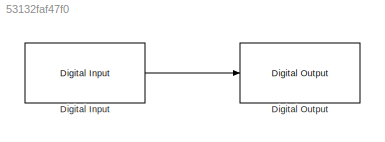
MODEL slx_53132faf47f0
KIND model
CONFIG AbsTol = auto
CONFIG EnableMultiTasking = on
CONFIG FixedStep = auto
CONFIG MaxStep = auto
CONFIG MinStep = auto
CONFIG RelTol = 1e-3
CONFIG SampleTimeConstraint = Unconstrained
CONFIG Solver = FixedStepAuto
CONFIG SolverName = FixedStepAuto
CONFIG StartTime = 0.0
CONFIG StopTime = inf
BLOCK [Reference] Digital Input  REF=arduinolib/Digital Input
  Ports = [0, 1]
  SourceBlock = arduinolib/Digital Input
  SourceProductBaseCode = ARDUINO
  SourceProductName = Simulink Support Package for Arduino Hardware
  SourceType = Arduino Digital Input
BLOCK [Reference] Digital Output  REF=arduinolib/Digital Output
  Ports = [1]
  SourceBlock = arduinolib/Digital Output
  SourceProductBaseCode = ARDUINO
  SourceProductName = Simulink Support Package for Arduino Hardware
  SourceType = Arduino Digital Output
LINE Digital Input:1 -> Digital Output:1
